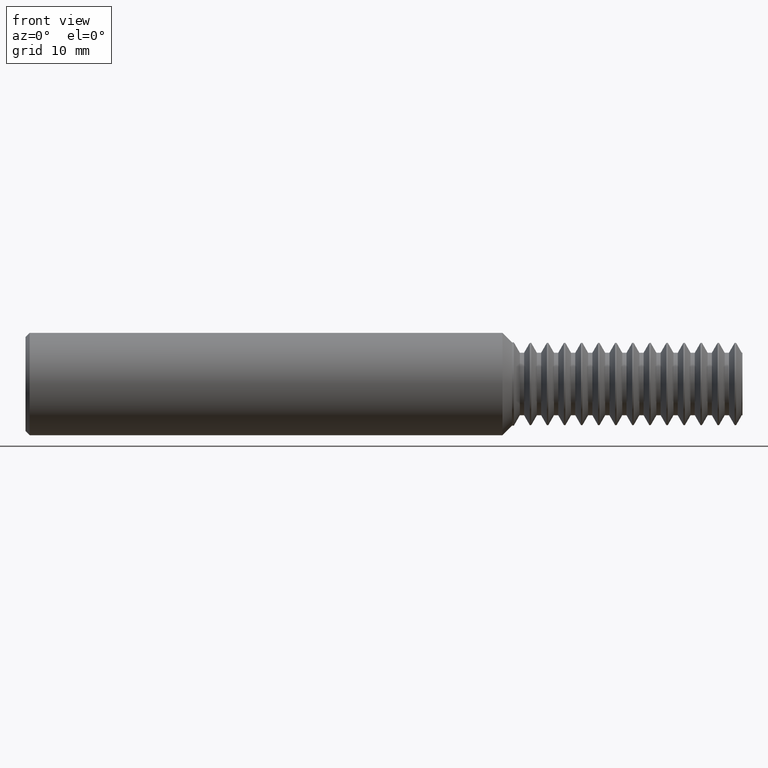
[diagram: clean part render]
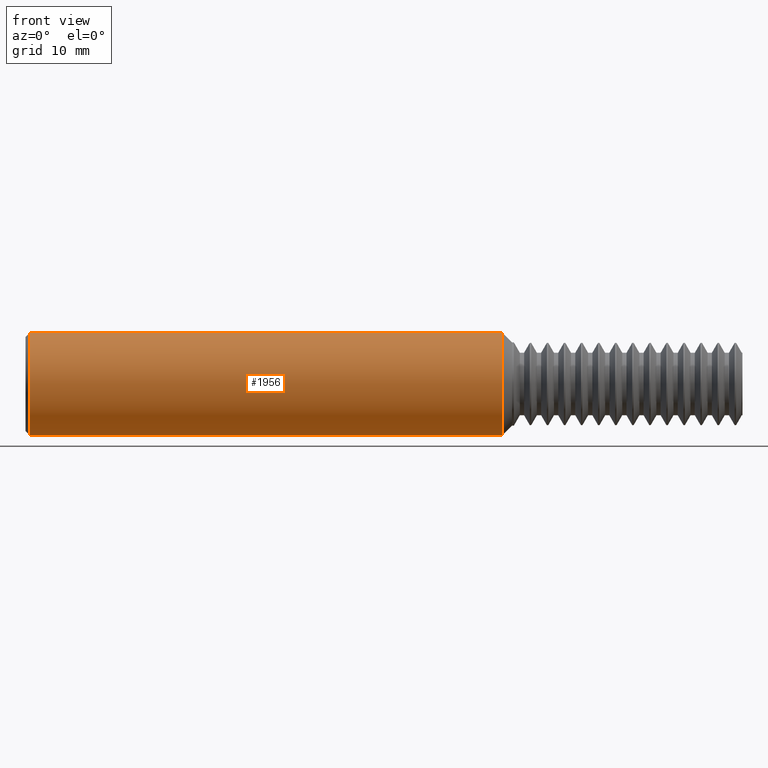
[diagram: same view with one face highlighted and labeled with its STEP entity id]
A machine part, front view. The second image highlights one B-rep face of the part: STEP entity #1956.
In plain terms, the highlighted cylindrical surface (partial cylindrical patch) has radius 6.3462 mm, axis along (-1, -0, -0).
Its self-contained STEP definition (entity closure, byte-faithful):
#97 = EDGE_CURVE ( 'NONE', #412, #1858, #865, .T. ) ;
#163 = CARTESIAN_POINT ( 'NONE',  ( 2.328149999999999942, 0.0000000000000000000, 0.0000000000000000000 ) ) ;
#343 = CARTESIAN_POINT ( 'NONE',  ( 0.0000000000000000000, 3.059780027669661931E-17, -0.2498499999999999888 ) ) ;
#377 = DIRECTION ( 'NONE',  ( -1.000000000000000000, -0.0000000000000000000, -0.0000000000000000000 ) ) ;
#412 = VERTEX_POINT ( 'NONE', #622 ) ;
#423 = CIRCLE ( 'NONE', #1159, 0.2498499999999999888 ) ;
#442 = VERTEX_POINT ( 'NONE', #855 ) ;
#450 = CARTESIAN_POINT ( 'NONE',  ( 0.0000000000000000000, 0.0000000000000000000, 0.0000000000000000000 ) ) ;
#468 = DIRECTION ( 'NONE',  ( -1.000000000000000000, -0.0000000000000000000, -0.0000000000000000000 ) ) ;
#539 = FACE_OUTER_BOUND ( 'NONE', #2505, .T. ) ;
#554 = ORIENTED_EDGE ( 'NONE', *, *, #1100, .T. ) ;
#565 = CARTESIAN_POINT ( 'NONE',  ( 0.01999999999999893183, 0.0000000000000000000, 0.0000000000000000000 ) ) ;
#587 = VERTEX_POINT ( 'NONE', #1829 ) ;
#622 = CARTESIAN_POINT ( 'NONE',  ( 2.328149999999999942, 0.0000000000000000000, 0.2498499999999999888 ) ) ;
#855 = CARTESIAN_POINT ( 'NONE',  ( 0.01999999999999893183, 0.0000000000000000000, -0.2498499999999999888 ) ) ;
#865 = LINE ( 'NONE', #2296, #1523 ) ;
#1046 = DIRECTION ( 'NONE',  ( 1.000000000000000000, 0.0000000000000000000, 0.0000000000000000000 ) ) ;
#1100 = EDGE_CURVE ( 'NONE', #1858, #442, #1918, .T. ) ;
#1159 = AXIS2_PLACEMENT_3D ( 'NONE', #163, #377, #1991 ) ;
#1523 = VECTOR ( 'NONE', #2991, 39.37007874015748143 ) ;
#1626 = CYLINDRICAL_SURFACE ( 'NONE', #2808, 0.2498499999999999888 ) ;
#1743 = AXIS2_PLACEMENT_3D ( 'NONE', #565, #1046, #2186 ) ;
#1829 = CARTESIAN_POINT ( 'NONE',  ( 2.328149999999999942, 3.059780027669661931E-17, -0.2498499999999999888 ) ) ;
#1858 = VERTEX_POINT ( 'NONE', #2764 ) ;
#1918 = CIRCLE ( 'NONE', #1743, 0.2498499999999999888 ) ;
#1956 = ADVANCED_FACE ( 'NONE', ( #539 ), #1626, .T. ) ;
#1991 = DIRECTION ( 'NONE',  ( 0.0000000000000000000, 0.0000000000000000000, 1.000000000000000000 ) ) ;
#2026 = ORIENTED_EDGE ( 'NONE', *, *, #2721, .T. ) ;
#2044 = ORIENTED_EDGE ( 'NONE', *, *, #97, .T. ) ;
#2058 = DIRECTION ( 'NONE',  ( 0.0000000000000000000, 0.0000000000000000000, 1.000000000000000000 ) ) ;
#2077 = VECTOR ( 'NONE', #2651, 39.37007874015748143 ) ;
#2186 = DIRECTION ( 'NONE',  ( 0.0000000000000000000, 0.0000000000000000000, -1.000000000000000000 ) ) ;
#2261 = EDGE_CURVE ( 'NONE', #587, #442, #2990, .T. ) ;
#2268 = ORIENTED_EDGE ( 'NONE', *, *, #2261, .F. ) ;
#2296 = CARTESIAN_POINT ( 'NONE',  ( 0.0000000000000000000, 0.0000000000000000000, 0.2498499999999999888 ) ) ;
#2505 = EDGE_LOOP ( 'NONE', ( #2268, #2026, #2044, #554 ) ) ;
#2651 = DIRECTION ( 'NONE',  ( -1.000000000000000000, -0.0000000000000000000, -0.0000000000000000000 ) ) ;
#2721 = EDGE_CURVE ( 'NONE', #587, #412, #423, .T. ) ;
#2764 = CARTESIAN_POINT ( 'NONE',  ( 0.01999999999999893183, 3.059780027669661931E-17, 0.2498499999999999888 ) ) ;
#2808 = AXIS2_PLACEMENT_3D ( 'NONE', #450, #468, #2058 ) ;
#2990 = LINE ( 'NONE', #343, #2077 ) ;
#2991 = DIRECTION ( 'NONE',  ( -1.000000000000000000, -0.0000000000000000000, -0.0000000000000000000 ) ) ;